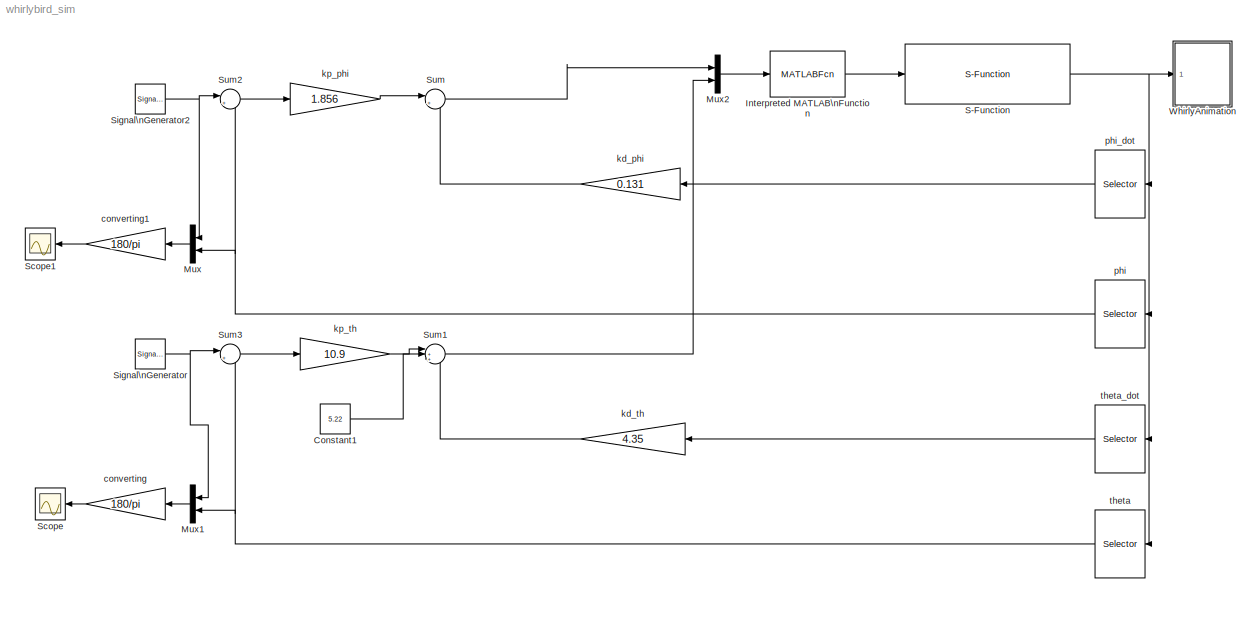
MODEL whirlybird_sim
KIND model
BLOCK [Constant] Constant1
  SID = 70
  Value = 5.22
BLOCK [MATLABFcn] Interpreted MATLAB\nFunction
  MATLABFcn = autopilot(u, P)
  OutputDimensions = 2
  Ports = [1, 1]
  SID = 40
  SampleTime = .005
BLOCK [Mux] Mux
  DisplayOption = bar
  Inputs = 2
  Ports = [2, 1]
  SID = 66
BLOCK [Mux] Mux1
  DisplayOption = bar
  Inputs = 2
  Ports = [2, 1]
  SID = 67
BLOCK [Mux] Mux2
  DisplayOption = bar
  Inputs = 2
  Ports = [2, 1]
  SID = 68
BLOCK [S-Function] S-Function
  FunctionName = whirlybird_dynamics
  Parameters = P
  Ports = [1, 1]
  SID = 4
BLOCK [Scope] Scope
  Floating = off
  NumInputPorts = 1
  Ports = [1]
  SID = 64
  YMax = 20
  YMin = -20
BLOCK [Scope] Scope1
  Floating = off
  NumInputPorts = 1
  Ports = [1]
  SID = 80
  SaveName = ScopeData1
  YMax = 25
  YMin = -25
BLOCK [SignalGenerator] Signal\nGenerator
  Amplitude = 15*pi/180
  Frequency = .5
  Ports = [0, 1]
  SID = 79
  Units = rad/sec
  WaveForm = square
BLOCK [SignalGenerator] Signal\nGenerator2
  Amplitude = 20*pi/180*0
  Ports = [0, 1]
  SID = 83
  Units = rad/sec
  WaveForm = square
BLOCK [Sum] Sum
  IconShape = round
  InputSameDT = off
  Inputs = |+-
  OutDataTypeStr = Inherit: Inherit via internal rule
  Ports = [2, 1]
  SID = 52
  SaturateOnIntegerOverflow = off
BLOCK [Sum] Sum1
  IconShape = round
  InputSameDT = off
  Inputs = |++-
  OutDataTypeStr = Inherit: Inherit via internal rule
  Ports = [3, 1]
  SID = 55
  SaturateOnIntegerOverflow = off
BLOCK [Sum] Sum2
  IconShape = round
  InputSameDT = off
  Inputs = |+-
  OutDataTypeStr = Inherit: Inherit via internal rule
  Ports = [2, 1]
  SID = 56
  SaturateOnIntegerOverflow = off
BLOCK [Sum] Sum3
  IconShape = round
  InputSameDT = off
  Inputs = |+-
  OutDataTypeStr = Inherit: Inherit via internal rule
  Ports = [2, 1]
  SID = 57
  SaturateOnIntegerOverflow = off
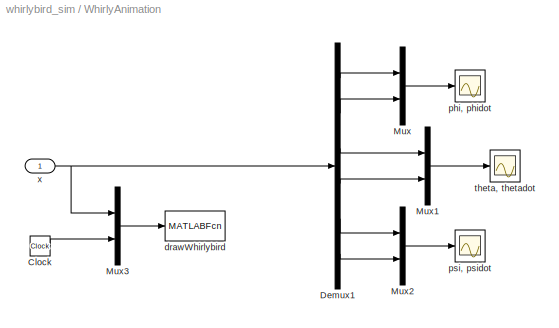
BLOCK [SubSystem] WhirlyAnimation
  Ports = [1]
  RequestExecContextInheritance = off
  SID = 15
BLOCK [Clock] WhirlyAnimation/Clock
  Decimation = 1
  SID = 17
BLOCK [Demux] WhirlyAnimation/Demux1
  DisplayOption = bar
  Outputs = 6
  Ports = [1, 6]
  SID = 33
BLOCK [Mux] WhirlyAnimation/Mux
  DisplayOption = bar
  Inputs = 2
  Ports = [2, 1]
  SID = 21
BLOCK [Mux] WhirlyAnimation/Mux1
  DisplayOption = bar
  Inputs = 2
  Ports = [2, 1]
  SID = 34
BLOCK [Mux] WhirlyAnimation/Mux2
  DisplayOption = bar
  Inputs = 2
  Ports = [2, 1]
  SID = 35
BLOCK [Mux] WhirlyAnimation/Mux3
  DisplayOption = bar
  Inputs = 2
  Ports = [2, 1]
  SID = 37
BLOCK [MATLABFcn] WhirlyAnimation/drawWhirlybird
  MATLABFcn = drawWhirlybird(u, P)
  OutputDimensions = 0
  Ports = [1]
  SID = 22
  SampleTime = 0.1
BLOCK [Scope] WhirlyAnimation/phi, phidot
  DataFormat = StructureWithTime
  Floating = off
  NumInputPorts = 1
  Ports = [1]
  SID = 1
  SampleTime = 0
  SaveName = ScopeData4
  TimeRange = 40
  YMax = 15
  YMin = -10
  ZoomMode = xonly
BLOCK [Scope] WhirlyAnimation/psi, psidot
  DataFormat = StructureWithTime
  Floating = off
  NumInputPorts = 1
  Ports = [1]
  SID = 24
  SampleTime = 0
  SaveName = ScopeData3
  TimeRange = 40
  YMax = 1
  YMin = -2
BLOCK [Scope] WhirlyAnimation/theta, thetadot
  DataFormat = StructureWithTime
  Floating = off
  NumInputPorts = 1
  Ports = [1]
  SID = 23
  SampleTime = 0
  SaveName = ScopeData2
  TimeRange = 40
  YMax = 1
  YMin = -2
BLOCK [Inport] WhirlyAnimation/x
  IconDisplay = Port number
  SID = 36
BLOCK [Gain] converting
  Gain = 180/pi
  Multiplication = Matrix(K*u)
  OutDataTypeStr = Inherit: Inherit via internal rule
  ParamDataTypeStr = Inherit: Inherit via internal rule
  SID = 74
  SaturateOnIntegerOverflow = off
BLOCK [Gain] converting1
  Gain = 180/pi
  Multiplication = Matrix(K*u)
  OutDataTypeStr = Inherit: Inherit via internal rule
  ParamDataTypeStr = Inherit: Inherit via internal rule
  SID = 81
  SaturateOnIntegerOverflow = off
BLOCK [Gain] kd_phi
  Gain = 0.131
  Multiplication = Matrix(K*u)
  OutDataTypeStr = Inherit: Inherit via internal rule
  ParamDataTypeStr = Inherit: Inherit via internal rule
  SID = 49
  SaturateOnIntegerOverflow = off
BLOCK [Gain] kd_th
  Gain = 4.35
  Multiplication = Matrix(K*u)
  OutDataTypeStr = Inherit: Inherit via internal rule
  ParamDataTypeStr = Inherit: Inherit via internal rule
  SID = 50
  SaturateOnIntegerOverflow = off
BLOCK [Gain] kp_phi
  Gain = 1.856
  Multiplication = Matrix(K*u)
  OutDataTypeStr = Inherit: Inherit via internal rule
  ParamDataTypeStr = Inherit: Inherit via internal rule
  SID = 53
  SaturateOnIntegerOverflow = off
BLOCK [Gain] kp_th
  Gain = 10.9
  Multiplication = Matrix(K*u)
  OutDataTypeStr = Inherit: Inherit via internal rule
  ParamDataTypeStr = Inherit: Inherit via internal rule
  SID = 54
  SaturateOnIntegerOverflow = off
BLOCK [Selector] phi
  Indices = [1]
  InputPortWidth = 6
  Ports = [1, 1]
  SID = 45
BLOCK [Selector] phi_dot
  Indices = [2]
  InputPortWidth = 6
  Ports = [1, 1]
  SID = 46
BLOCK [Selector] theta
  Indices = [3]
  InputPortWidth = 6
  Ports = [1, 1]
  SID = 47
BLOCK [Selector] theta_dot
  Indices = [4]
  InputPortWidth = 6
  Ports = [1, 1]
  SID = 48
LINE Constant1:1 -> Sum1:2
LINE Interpreted MATLAB\nFunction:1 -> S-Function:1
LINE Mux1:1 -> converting:1
LINE Mux2:1 -> Interpreted MATLAB\nFunction:1
LINE Mux:1 -> converting1:1
NET S-Function:1 -> WhirlyAnimation:1, phi:1, phi_dot:1, theta:1, theta_dot:1
NET Signal\nGenerator2:1 -> Mux:1, Sum2:1
NET Signal\nGenerator:1 -> Mux1:1, Sum3:1
LINE Sum1:1 -> Mux2:2
LINE Sum2:1 -> kp_phi:1
LINE Sum3:1 -> kp_th:1
LINE Sum:1 -> Mux2:1
LINE WhirlyAnimation/Clock:1 -> WhirlyAnimation/Mux3:2
LINE WhirlyAnimation/Demux1:1 -> WhirlyAnimation/Mux:1
LINE WhirlyAnimation/Demux1:2 -> WhirlyAnimation/Mux:2
LINE WhirlyAnimation/Demux1:3 -> WhirlyAnimation/Mux1:1
LINE WhirlyAnimation/Demux1:4 -> WhirlyAnimation/Mux1:2
LINE WhirlyAnimation/Demux1:5 -> WhirlyAnimation/Mux2:1
LINE WhirlyAnimation/Demux1:6 -> WhirlyAnimation/Mux2:2
LINE WhirlyAnimation/Mux1:1 -> WhirlyAnimation/theta, thetadot:1
LINE WhirlyAnimation/Mux2:1 -> WhirlyAnimation/psi, psidot:1
LINE WhirlyAnimation/Mux3:1 -> WhirlyAnimation/drawWhirlybird:1
LINE WhirlyAnimation/Mux:1 -> WhirlyAnimation/phi, phidot:1
NET WhirlyAnimation/x:1 -> WhirlyAnimation/Demux1:1, WhirlyAnimation/Mux3:1
LINE converting1:1 -> Scope1:1
LINE converting:1 -> Scope:1
LINE kd_phi:1 -> Sum:2
LINE kd_th:1 -> Sum1:3
LINE kp_phi:1 -> Sum:1
LINE kp_th:1 -> Sum1:1
NET phi:1 -> Mux:2, Sum2:2
LINE phi_dot:1 -> kd_phi:1
NET theta:1 -> Mux1:2, Sum3:2
LINE theta_dot:1 -> kd_th:1
note: NET lines group one-source signal fan-out (src -> all destinations, sorted); 1:1 wires keep LINE
